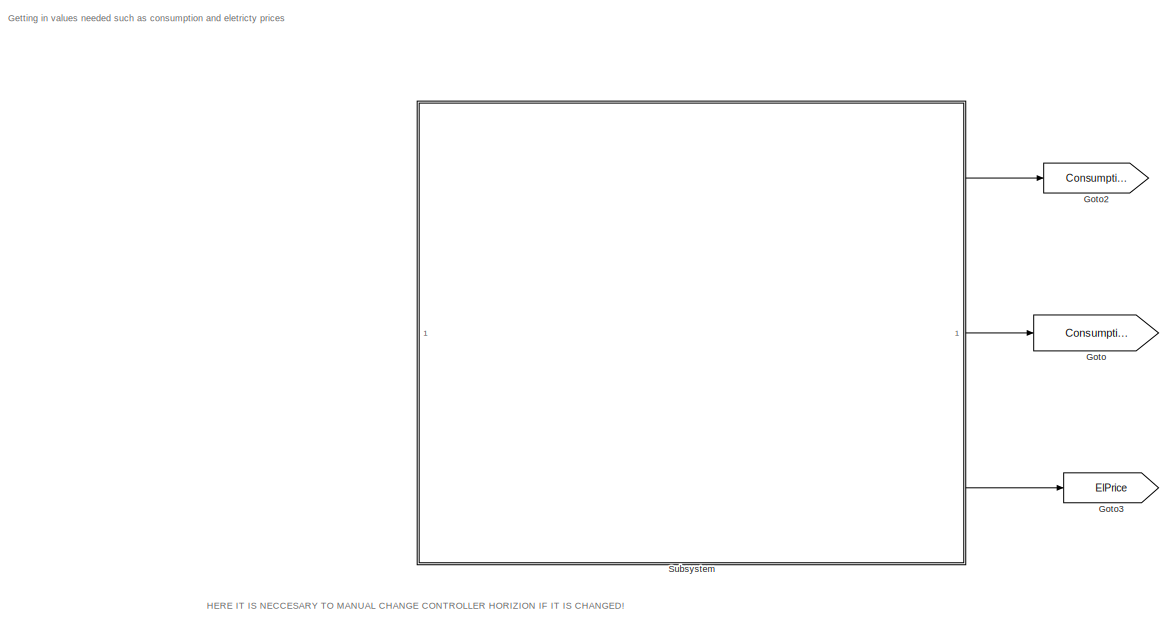
[diagram: root canvas - part 1/3, left side, full height]
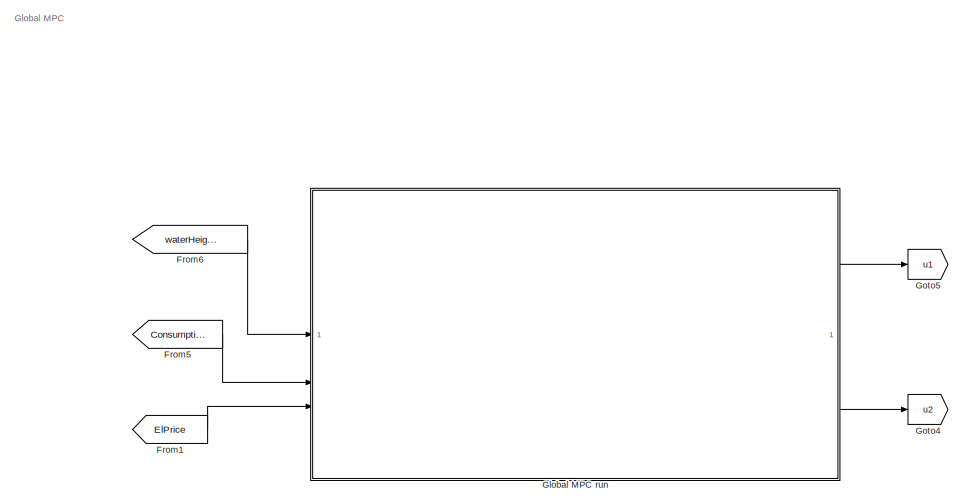
[diagram: root canvas - part 2/3, center side, full height]
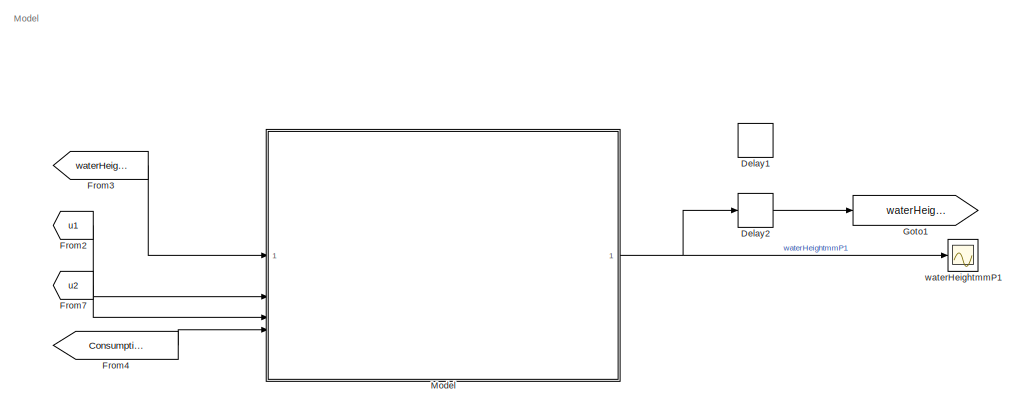
[diagram: root canvas - part 3/3, middle right region]
MODEL slx_8cda2d50b6a2
KIND model
CONFIG AbsTol = auto
CONFIG EnableMultiTasking = off
CONFIG FixedStep = 3600
CONFIG MaxStep = auto
CONFIG MinStep = auto
CONFIG RelTol = 1e-3
CONFIG SampleTimeConstraint = Unconstrained
CONFIG SolverName = FixedStepAuto
CONFIG StartTime = 0.0
CONFIG StopTime = 600
BLOCK [Delay] Delay1
  Commented = on
  DelayLength = 1
  InitialCondition = c.V/c.At*1e3
  InputPortMap = u0
BLOCK [Delay] Delay2
  DelayLength = 1
  InitialCondition = 258
  InputPortMap = u0
BLOCK [From] From1
  GotoTag = ElPrice
  TagVisibility = global
BLOCK [From] From2
  GotoTag = u1
  TagVisibility = global
BLOCK [From] From3
  GotoTag = waterHeightmm
  TagVisibility = global
BLOCK [From] From4
  GotoTag = ConsumptionNoise
BLOCK [From] From5
  GotoTag = Consumption
  TagVisibility = global
BLOCK [From] From6
  GotoTag = waterHeightmm
  TagVisibility = global
BLOCK [From] From7
  GotoTag = u2
  TagVisibility = global
BLOCK [SubSystem] Global MPC run
  ReferencedSubsystem = GlobalMPController
  c = scaled_standard_constants
BLOCK [Goto] Goto
  GotoTag = ConsumptionNoise
BLOCK [Goto] Goto1
  GotoTag = waterHeightmm
  TagVisibility = global
BLOCK [Goto] Goto2
  GotoTag = Consumption
  TagVisibility = global
BLOCK [Goto] Goto3
  GotoTag = ElPrice
  TagVisibility = global
BLOCK [Goto] Goto4
  GotoTag = u2
  TagVisibility = global
BLOCK [Goto] Goto5
  GotoTag = u1
  TagVisibility = global
BLOCK [SubSystem] Model
  ReferencedSubsystem = SimulinkModel
BLOCK [SubSystem] Subsystem
  ReferencedSubsystem = DemandEletricityPrice
BLOCK [Scope] waterHeightmmP1
  Floating = off
  NumInputPorts = 1
  ScopeSpecificationString = Simulink.scopes.TimeScopeBlockCfg('CurrentConfiguration', extmgr.ConfigurationSet(extmgr.Configuration('Core','General UI',true),extmgr.Configuration('Core','Source UI',true),extmgr.Configuration('Sources','WiredSimulink',true),extmgr.Configuration('Visuals','Time Domain',true,'SerializedDisplays',{struct('MinYLimReal','222.32728','MaxYLimReal','590.99696','YLabelReal','','MinYLimMag','222.32728',...<+1724ch>
ANNOTATION (root): Getting in values needed such as consumption and eletricty prices
ANNOTATION (root): Global MPC
ANNOTATION (root): HERE IT IS NECCESARY TO MANUAL CHANGE CONTROLLER HORIZION IF IT IS CHANGED!
ANNOTATION (root): Model
LINE Delay2:1 -> Goto1:1
LINE From1:1 -> Global MPC run:3
LINE From2:1 -> Model:2
LINE From3:1 -> Model:1
LINE From4:1 -> Model:4
LINE From5:1 -> Global MPC run:2
LINE From6:1 -> Global MPC run:1
LINE From7:1 -> Model:3
LINE Global MPC run:1 -> Goto5:1
LINE Global MPC run:2 -> Goto4:1
NET Model:1 -> Delay2:1, waterHeightmmP1:1
LINE Subsystem:1 -> Goto2:1
LINE Subsystem:2 -> Goto:1
LINE Subsystem:3 -> Goto3:1
note: NET lines group one-source signal fan-out (src -> all destinations, sorted); 1:1 wires keep LINE
